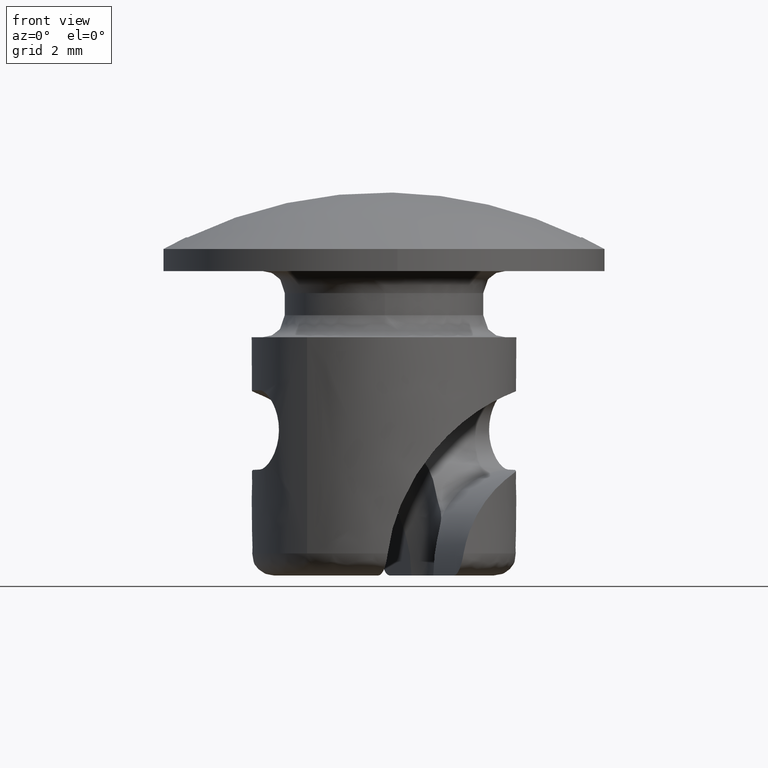
[diagram: clean part render]
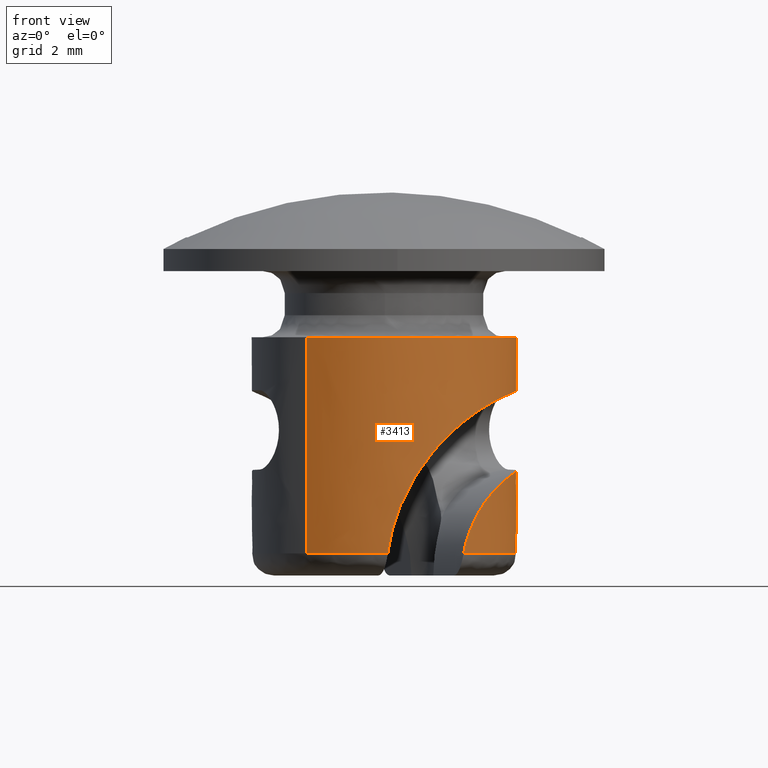
[diagram: same view with one face highlighted and labeled with its STEP entity id]
A machine part, front view. The second image highlights one B-rep face of the part: STEP entity #3413.
In plain terms, the highlighted face is a freeform B-spline surface patch.
Its self-contained STEP definition (entity closure, byte-faithful):
#1541=CARTESIAN_POINT('',(2.819077636768695,1.026061049781646,-4.500000000000000));
#1542=VERTEX_POINT('',#1541);
#2472=CARTESIAN_POINT('',(2.822093146102330,1.015451677896610,-2.700042657631255));
#2473=VERTEX_POINT('',#2472);
#2474=CARTESIAN_POINT('',(2.819077636768695,1.026061049781646,-4.500000000000000));
#2475=CARTESIAN_POINT('',(2.797468906200187,1.085451502089196,-4.500017865007776));
#2476=CARTESIAN_POINT('',(2.757041661640545,1.185441174169247,-4.488655396718276));
#2477=CARTESIAN_POINT('',(2.686019778055180,1.337951788252279,-4.439640264911692));
#2478=CARTESIAN_POINT('',(2.614225894822477,1.473842840668880,-4.362269675619167));
#2479=CARTESIAN_POINT('',(2.560251191123963,1.564344713989090,-4.278749923142581));
#2480=CARTESIAN_POINT('',(2.509272103151865,1.645027062273850,-4.184927172313314));
#2481=CARTESIAN_POINT('',(2.467808692516607,1.707204119325143,-4.091459277174256));
#2482=CARTESIAN_POINT('',(2.418918881110212,1.776006300651090,-3.933691817577534));
#2483=CARTESIAN_POINT('',(2.388360325430264,1.816102161227821,-3.773040575949308));
#2484=CARTESIAN_POINT('',(2.378385888620726,1.828218368085695,-3.601935893114165));
#2485=CARTESIAN_POINT('',(2.385682306780356,1.819260564079620,-3.475620057097189));
#2486=CARTESIAN_POINT('',(2.402580898613323,1.797431402608152,-3.348370689422898));
#2487=CARTESIAN_POINT('',(2.428972168688479,1.762151415266873,-3.229223891860614));
#2488=CARTESIAN_POINT('',(2.476443773596732,1.694532364703824,-3.087540495225891));
#2489=CARTESIAN_POINT('',(2.516110311662750,1.634407504375052,-3.001711054263197));
#2490=CARTESIAN_POINT('',(2.561754847542900,1.561750317347303,-2.919310614542992));
#2491=CARTESIAN_POINT('',(2.603592337403328,1.491398267421424,-2.854400758625561));
#2492=CARTESIAN_POINT('',(2.662213086177277,1.382942641570864,-2.784649001879234));
#2493=CARTESIAN_POINT('',(2.717468994856419,1.270652313107592,-2.736182096703763));
#2494=CARTESIAN_POINT('',(2.771954971207015,1.147621644407025,-2.705770503388129));
#2495=CARTESIAN_POINT('',(2.805734538942899,1.060922305459914,-2.699445244602806));
#2496=CARTESIAN_POINT('',(2.822093146102330,1.015451677896610,-2.700042657631255));
#2497=B_SPLINE_CURVE_WITH_KNOTS('',3,(#2474,#2475,#2476,#2477,#2478,#2479,#2480,#2481,#2482,#2483,#2484,#2485,#2486,#2487,#2488,#2489,#2490,#2491,#2492,#2493,#2494,#2495,#2496),.UNSPECIFIED.,.F.,.U.,(4,1,1,1,1,1,1,1,1,1,1,1,1,1,1,1,1,1,1,1,4),(-0.000002368374862,0.189587197277871,0.323413621870071,0.524153560488760,0.702590206553064,0.724896339329975,0.925636782380350,1.059463705723590,1.260203448295039,1.427488519254070,1.572469453568385,1.639382355467116,1.817818068991392,1.951644680282551,2.130081332121763,2.152387474308497,2.308519641028211,2.442346152496830,2.576172626481519,2.709999081548189,2.854979827615592),.UNSPECIFIED.);
#2498=EDGE_CURVE('',#1542,#2473,#2497,.T.);
#2811=CARTESIAN_POINT('',(1.803708136351050,-2.397214416538710,-6.400000000000000));
#2812=VERTEX_POINT('',#2811);
#2813=CARTESIAN_POINT('',(2.819077636768695,1.026061049781646,-4.500000000000000));
#2814=CARTESIAN_POINT('',(2.886318888333447,0.841317355827720,-4.500000000000042));
#2815=CARTESIAN_POINT('',(2.934468276000204,0.653064396546173,-4.501577904167891));
#2816=CARTESIAN_POINT('',(2.979207986240080,0.365676177710893,-4.508215175440377));
#2817=CARTESIAN_POINT('',(2.989506997383983,0.269040006466312,-4.511181769396406));
#2818=CARTESIAN_POINT('',(2.997882743811527,0.122811674847407,-4.517420307340307));
#2819=CARTESIAN_POINT('',(2.999493992359111,0.073734271748970,-4.519808151726317));
#2820=CARTESIAN_POINT('',(3.000302040735953,-0.024261438218215,-4.525304570877968));
#2821=CARTESIAN_POINT('',(2.999504365021666,-0.073036279992940,-4.528403602621145));
#2822=CARTESIAN_POINT('',(2.989658637906180,-0.315773609508019,-4.545993463106641));
#2823=CARTESIAN_POINT('',(2.963152595788540,-0.506372227242711,-4.566537575698353));
#2824=CARTESIAN_POINT('',(2.907867872741239,-0.739322201974521,-4.607844915142721));
#2825=CARTESIAN_POINT('',(2.895696632359297,-0.785644264178582,-4.616903404123109));
#2826=CARTESIAN_POINT('',(2.869129661526526,-0.877719136080765,-4.636876690993237));
#2827=CARTESIAN_POINT('',(2.854674921146494,-0.923634440225744,-4.647837404424392));
#2828=CARTESIAN_POINT('',(2.808525890742806,-1.058895773621886,-4.683526213482393));
#2829=CARTESIAN_POINT('',(2.774051075122454,-1.145894051446379,-4.711047747879118));
#2830=CARTESIAN_POINT('',(2.698772532625128,-1.313415152065942,-4.775099283944345));
#2831=CARTESIAN_POINT('',(2.657964873001152,-1.393938069944234,-4.811624564716660));
#2832=CARTESIAN_POINT('',(2.592833604454075,-1.509693363518106,-4.874543502094578));
#2833=CARTESIAN_POINT('',(2.570373242150255,-1.547591262285969,-4.896977440788819));
#2834=CARTESIAN_POINT('',(2.524857772266333,-1.620787015277512,-4.944242614372260));
#2835=CARTESIAN_POINT('',(2.501820204165636,-1.656077394008835,-4.969047888232270));
#2836=CARTESIAN_POINT('',(2.432203518366868,-1.758173120292185,-5.047092202441859));
#2837=CARTESIAN_POINT('',(2.385120871110427,-1.821208355269161,-5.103954440802536));
#2838=CARTESIAN_POINT('',(2.314785803358630,-1.908708213778758,-5.197007091862478));
#2839=CARTESIAN_POINT('',(2.291388576587920,-1.936698012049410,-5.229318986542923));
#2840=CARTESIAN_POINT('',(2.244907927467934,-1.990389207161597,-5.296635757912645));
#2841=CARTESIAN_POINT('',(2.221738353091448,-2.016182150149277,-5.331780191619350));
#2842=CARTESIAN_POINT('',(2.108336667020934,-2.138388377570268,-5.512766409542925));
#2843=CARTESIAN_POINT('',(2.026419125641739,-2.213984071282309,-5.672470576608077));
#2844=CARTESIAN_POINT('',(1.941192026105315,-2.287417706514550,-5.890630398012280));
#2845=CARTESIAN_POINT('',(1.924982181169695,-2.301049061259260,-5.935290716761243));
#2846=CARTESIAN_POINT('',(1.894790880787316,-2.325973064811409,-6.025433802800345));
#2847=CARTESIAN_POINT('',(1.880760162211142,-2.337309215005643,-6.071029773100555));
#2848=CARTESIAN_POINT('',(1.841960494817770,-2.368179501805928,-6.209366071017584));
#2849=CARTESIAN_POINT('',(1.820476547398409,-2.384597556223198,-6.303648080650068));
#2850=CARTESIAN_POINT('',(1.803708136351050,-2.397214416538710,-6.400000000000000));
#2851=B_SPLINE_CURVE_WITH_KNOTS('',3,(#2813,#2814,#2815,#2816,#2817,#2818,#2819,#2820,#2821,#2822,#2823,#2824,#2825,#2826,#2827,#2828,#2829,#2830,#2831,#2832,#2833,#2834,#2835,#2836,#2837,#2838,#2839,#2840,#2841,#2842,#2843,#2844,#2845,#2846,#2847,#2848,#2849,#2850),.UNSPECIFIED.,.F.,.U.,(4,2,2,2,2,2,2,2,2,2,2,2,2,2,2,2,2,2,4),(0.0,0.125000000000000,0.187500000000000,0.218750000000000,0.250000000000000,0.374999999999999,0.406249999999999,0.437499999999999,0.499999999999999,0.562499999999999,0.593749999999999,0.624999999999999,0.687499999999999,0.718749999999999,0.749999999999999,0.875000000000000,0.906250000000000,0.937500000000000,1.0),.UNSPECIFIED.);
#2852=EDGE_CURVE('',#1542,#2812,#2851,.T.);
#2927=CARTESIAN_POINT('',(1.743878512532116,2.441083311468245,-6.400000000000070));
#2928=VERTEX_POINT('',#2927);
#2942=CARTESIAN_POINT('',(1.803708136351050,-2.397214416538710,-6.400000000000000));
#2943=CARTESIAN_POINT('',(3.555889252561383,-1.078841177221838,-6.400000000000071));
#2944=CARTESIAN_POINT('',(2.831638270195144,0.990870681151809,-6.400000000000071));
#2945=CARTESIAN_POINT('',(2.517581247775026,1.888360031300514,-6.400000000000071));
#2946=CARTESIAN_POINT('',(1.743878512532117,2.441083311468246,-6.400000000000071));
#2954=(BOUNDED_CURVE()B_SPLINE_CURVE(2,(#2942,#2943,#2944,#2945,#2946),.UNSPECIFIED.,.F.,.U.)B_SPLINE_CURVE_WITH_KNOTS((3,2,3),(0.0,0.500000000000000,0.743372198286854),.UNSPECIFIED.)CURVE()GEOMETRIC_REPRESENTATION_ITEM()RATIONAL_B_SPLINE_CURVE((1.0,0.807331664785344,1.0,0.906219767437081,0.903733540292922))REPRESENTATION_ITEM(''));
#2955=EDGE_CURVE('',#2812,#2928,#2954,.T.);
#3039=CARTESIAN_POINT('',(3.0,0.0,-1.500000000000055));
#3040=VERTEX_POINT('',#3039);
#3041=CARTESIAN_POINT('',(1.743877725871825,2.441083873447846,-1.500000000000055));
#3042=VERTEX_POINT('',#3041);
#3043=CARTESIAN_POINT('',(3.0,0.0,-1.500000000000055));
#3044=CARTESIAN_POINT('',(2.999999999999953,1.543726892538660,-1.500000000000055));
#3045=CARTESIAN_POINT('',(1.743877725871825,2.441083873447847,-1.500000000000056));
#3053=(BOUNDED_CURVE()B_SPLINE_CURVE(2,(#3043,#3044,#3045),.UNSPECIFIED.,.F.,.U.)B_SPLINE_CURVE_WITH_KNOTS((3,3),(0.0,0.149965649778533),.UNSPECIFIED.)CURVE()GEOMETRIC_REPRESENTATION_ITEM()RATIONAL_B_SPLINE_CURVE((1.0,0.824304312499659,0.859395168513515))REPRESENTATION_ITEM(''));
#3054=EDGE_CURVE('',#3040,#3042,#3053,.T.);
#3073=CARTESIAN_POINT('',(-1.743877725871825,-2.441083873447846,-1.500000000000056));
#3074=VERTEX_POINT('',#3073);
#3088=CARTESIAN_POINT('',(-1.743877725871825,-2.441083873447846,-1.500000000000055));
#3089=CARTESIAN_POINT('',(-0.961505703513451,-2.999999999999880,-1.500000000000056));
#3090=CARTESIAN_POINT('',(7.045555E-014,-2.999999999999900,-1.500000000000056));
#3091=CARTESIAN_POINT('',(3.000000000000025,-2.999999999999966,-1.500000000000055));
#3092=CARTESIAN_POINT('',(3.0,0.0,-1.500000000000055));
#3100=(BOUNDED_CURVE()B_SPLINE_CURVE(2,(#3088,#3089,#3090,#3091,#3092),.UNSPECIFIED.,.F.,.U.)B_SPLINE_CURVE_WITH_KNOTS((3,2,3),(0.649965649778533,0.750000000000000,1.0),.UNSPECIFIED.)CURVE()GEOMETRIC_REPRESENTATION_ITEM()RATIONAL_B_SPLINE_CURVE((0.859395168513515,0.882802468686889,1.0,0.707106781186548,1.0))REPRESENTATION_ITEM(''));
#3101=EDGE_CURVE('',#3074,#3040,#3100,.T.);
#3312=CARTESIAN_POINT('',(-1.743878526417183,-2.441083301548932,-6.522500000000081));
#3313=CARTESIAN_POINT('',(0.697204775131749,-4.184961827966116,-6.522500000000082));
#3314=CARTESIAN_POINT('',(2.441083301548932,-1.743878526417183,-6.522500000000081));
#3315=CARTESIAN_POINT('',(4.184961827966116,0.697204775131749,-6.522500000000082));
#3316=CARTESIAN_POINT('',(1.743878526417183,2.441083301548932,-6.522500000000081));
#3317=CARTESIAN_POINT('',(-1.743878526417183,-2.441083301548932,-1.374437500000053));
#3318=CARTESIAN_POINT('',(0.697204775131749,-4.184961827966116,-1.374437500000053));
#3319=CARTESIAN_POINT('',(2.441083301548932,-1.743878526417183,-1.374437500000053));
#3320=CARTESIAN_POINT('',(4.184961827966116,0.697204775131749,-1.374437500000053));
#3321=CARTESIAN_POINT('',(1.743878526417183,2.441083301548932,-1.374437500000053));
#3329=(BOUNDED_SURFACE()B_SPLINE_SURFACE(2,1,((#3312,#3317),(#3313,#3318),(#3314,#3319),(#3315,#3320),(#3316,#3321)),.UNSPECIFIED.,.F.,.F.,.U.)B_SPLINE_SURFACE_WITH_KNOTS((3,2,3),(2,2),(0.0,4.970562748477141,9.941125496954282),(0.0,5.148062500000028),.UNSPECIFIED.)GEOMETRIC_REPRESENTATION_ITEM()RATIONAL_B_SPLINE_SURFACE(((1.0,1.0),(0.707106781186548,0.707106781186548),(1.0,1.0),(0.707106781186548,0.707106781186548),(1.0,1.0)))REPRESENTATION_ITEM('')SURFACE());
#3330=ORIENTED_EDGE('',*,*,#3101,.F.);
#3331=CARTESIAN_POINT('',(-1.743878512532116,-2.441083311468246,-6.400000000000071));
#3332=VERTEX_POINT('',#3331);
#3333=CARTESIAN_POINT('',(-1.743878512532116,-2.441083311468246,-6.400000000000071));
#3334=CARTESIAN_POINT('',(-1.743877725871825,-2.441083873447846,-1.500000000000056));
#3335=QUASI_UNIFORM_CURVE('',1,(#3333,#3334),.UNSPECIFIED.,.F.,.U.);
#3336=EDGE_CURVE('',#3332,#3074,#3335,.T.);
#3337=ORIENTED_EDGE('',*,*,#3336,.F.);
#3338=CARTESIAN_POINT('',(0.084513880760820,-2.998809331044365,-6.400000000000080));
#3339=VERTEX_POINT('',#3338);
#3340=CARTESIAN_POINT('',(-1.743878512532117,-2.441083311468246,-6.400000000000071));
#3341=CARTESIAN_POINT('',(-0.923410453437965,-3.027215137347074,-6.400000000000071));
#3342=CARTESIAN_POINT('',(0.084513880760821,-2.998809331044364,-6.400000000000071));
#3350=(BOUNDED_CURVE()B_SPLINE_CURVE(2,(#3340,#3341,#3342),.UNSPECIFIED.,.F.,.U.)B_SPLINE_CURVE_WITH_KNOTS((3,3),(0.743372198286852,1.0),.UNSPECIFIED.)CURVE()GEOMETRIC_REPRESENTATION_ITEM()RATIONAL_B_SPLINE_CURVE((0.903733540292922,0.901111897348261,1.0))REPRESENTATION_ITEM(''));
#3351=EDGE_CURVE('',#3332,#3339,#3350,.T.);
#3352=ORIENTED_EDGE('',*,*,#3351,.T.);
#3353=CARTESIAN_POINT('',(2.822093146102330,1.015451677896610,-2.700042657631255));
#3354=CARTESIAN_POINT('',(2.875854903259976,0.865906694881723,-2.700076288094888));
#3355=CARTESIAN_POINT('',(2.917112531107916,0.714066773925658,-2.700728016638946));
#3356=CARTESIAN_POINT('',(2.975606866864029,0.405986645468857,-2.703898568709667));
#3357=CARTESIAN_POINT('',(2.992842233860915,0.249746118507164,-2.706411507552318));
#3358=CARTESIAN_POINT('',(3.000052792759318,0.011988529648512,-2.713109434471206));
#3359=CARTESIAN_POINT('',(2.999296480871659,-0.067459923079882,-2.715837737512863));
#3360=CARTESIAN_POINT('',(2.991616205524385,-0.224726316776662,-2.722547010089310));
#3361=CARTESIAN_POINT('',(2.984703935746196,-0.302843049905755,-2.726535672633593));
#3362=CARTESIAN_POINT('',(2.954928869627638,-0.535628729393162,-2.740978477687386));
#3363=CARTESIAN_POINT('',(2.923076496660904,-0.688744248795963,-2.753859924826854));
#3364=CARTESIAN_POINT('',(2.857096489182562,-0.915050027222785,-2.781111542949351));
#3365=CARTESIAN_POINT('',(2.831951314223326,-0.990116691541697,-2.791576754295831));
#3366=CARTESIAN_POINT('',(2.776617580319120,-1.136122681562342,-2.815314445755966));
#3367=CARTESIAN_POINT('',(2.746344414335611,-1.207415523029745,-2.828620728642522));
#3368=CARTESIAN_POINT('',(2.648123367149097,-1.416209914309736,-2.873525008221708));
#3369=CARTESIAN_POINT('',(2.572797205035392,-1.548647807998911,-2.910074921243828));
#3370=CARTESIAN_POINT('',(2.446164537301653,-1.736949949008009,-2.977992285078489));
#3371=CARTESIAN_POINT('',(2.401424939679501,-1.798275289447940,-3.002973088198590));
#3372=CARTESIAN_POINT('',(2.309301228765925,-1.915195679700256,-3.056885444800950));
#3373=CARTESIAN_POINT('',(2.261834849109409,-1.970969146593538,-3.085849380747013));
#3374=CARTESIAN_POINT('',(2.115877177744301,-2.130637164969509,-3.179115635747378));
#3375=CARTESIAN_POINT('',(2.013837008102399,-2.226897221993999,-3.249779484909936));
#3376=CARTESIAN_POINT('',(1.855960377637431,-2.357203942633698,-3.370078872996593));
#3377=CARTESIAN_POINT('',(1.802431153173799,-2.398331701464211,-3.412665621440438));
#3378=CARTESIAN_POINT('',(1.696045701040740,-2.474756229818545,-3.501244058628076));
#3379=CARTESIAN_POINT('',(1.642958487109651,-2.510256123270236,-3.547402878761206));
#3380=CARTESIAN_POINT('',(1.484503732645045,-2.609394038625247,-3.691508996691189));
#3381=CARTESIAN_POINT('',(1.379944677440197,-2.665692817519516,-3.795073067323593));
#3382=CARTESIAN_POINT('',(1.226534711679256,-2.737975407048957,-3.961957578387590));
#3383=CARTESIAN_POINT('',(1.176175018115901,-2.759929611023970,-4.019305174472999));
#3384=CARTESIAN_POINT('',(1.078200890752222,-2.799692767489960,-4.136232684574494));
#3385=CARTESIAN_POINT('',(1.030429064087012,-2.817576143520777,-4.195981555565045));
#3386=CARTESIAN_POINT('',(0.890954738279192,-2.866053213776358,-4.379039248317448));
#3387=CARTESIAN_POINT('',(0.803083238071027,-2.891497793057131,-4.506146819935338));
#3388=CARTESIAN_POINT('',(0.679863169754897,-2.922045261593410,-4.704461845390959));
#3389=CARTESIAN_POINT('',(0.640223264662989,-2.930951001300221,-4.771845539055026));
#3390=CARTESIAN_POINT('',(0.563998114022824,-2.946592564187890,-4.909216840050498));
#3391=CARTESIAN_POINT('',(0.527330156116822,-2.953339620978757,-4.979389399753688));
#3392=CARTESIAN_POINT('',(0.423292973642795,-2.970692986090356,-5.191665087299799));
#3393=CARTESIAN_POINT('',(0.361571511304576,-2.978515900507908,-5.335979996553808));
#3394=CARTESIAN_POINT('',(0.253957191850341,-2.989649919149285,-5.630282909451709));
#3395=CARTESIAN_POINT('',(0.208063976156817,-2.992956081746573,-5.780270979830767));
#3396=CARTESIAN_POINT('',(0.133155657282952,-2.997252263995035,-6.086199789422286));
#3397=CARTESIAN_POINT('',(0.104135058508056,-2.998243777106042,-6.242581683582298));
#3398=CARTESIAN_POINT('',(0.084513880760820,-2.998809331044365,-6.400000000000080));
#3399=B_SPLINE_CURVE_WITH_KNOTS('',3,(#3353,#3354,#3355,#3356,#3357,#3358,#3359,#3360,#3361,#3362,#3363,#3364,#3365,#3366,#3367,#3368,#3369,#3370,#3371,#3372,#3373,#3374,#3375,#3376,#3377,#3378,#3379,#3380,#3381,#3382,#3383,#3384,#3385,#3386,#3387,#3388,#3389,#3390,#3391,#3392,#3393,#3394,#3395,#3396,#3397,#3398),.UNSPECIFIED.,.F.,.U.,(4,2,2,2,2,2,2,2,2,2,2,2,2,2,2,2,2,2,2,2,2,2,4),(0.0,0.062500000000000,0.125000000000000,0.156250000000000,0.187499999999999,0.249999999999999,0.281249999999999,0.312499999999999,0.374999999999999,0.406249999999999,0.437499999999999,0.499999999999999,0.531249999999999,0.562499999999999,0.624999999999999,0.656249999999999,0.687499999999999,0.749999999999999,0.781249999999999,0.812499999999999,0.874999999999999,0.937500000000000,1.0),.UNSPECIFIED.);
#3400=EDGE_CURVE('',#2473,#3339,#3399,.T.);
#3401=ORIENTED_EDGE('',*,*,#3400,.F.);
#3402=ORIENTED_EDGE('',*,*,#2498,.F.);
#3403=ORIENTED_EDGE('',*,*,#2852,.T.);
#3404=ORIENTED_EDGE('',*,*,#2955,.T.);
#3405=CARTESIAN_POINT('',(1.743878512532116,2.441083311468245,-6.400000000000070));
#3406=CARTESIAN_POINT('',(1.743877725871825,2.441083873447846,-1.500000000000055));
#3407=QUASI_UNIFORM_CURVE('',1,(#3405,#3406),.UNSPECIFIED.,.F.,.U.);
#3408=EDGE_CURVE('',#2928,#3042,#3407,.T.);
#3409=ORIENTED_EDGE('',*,*,#3408,.T.);
#3410=ORIENTED_EDGE('',*,*,#3054,.F.);
#3411=EDGE_LOOP('',(#3330,#3337,#3352,#3401,#3402,#3403,#3404,#3409,#3410));
#3412=FACE_OUTER_BOUND('',#3411,.T.);
#3413=ADVANCED_FACE('',(#3412),#3329,.T.);